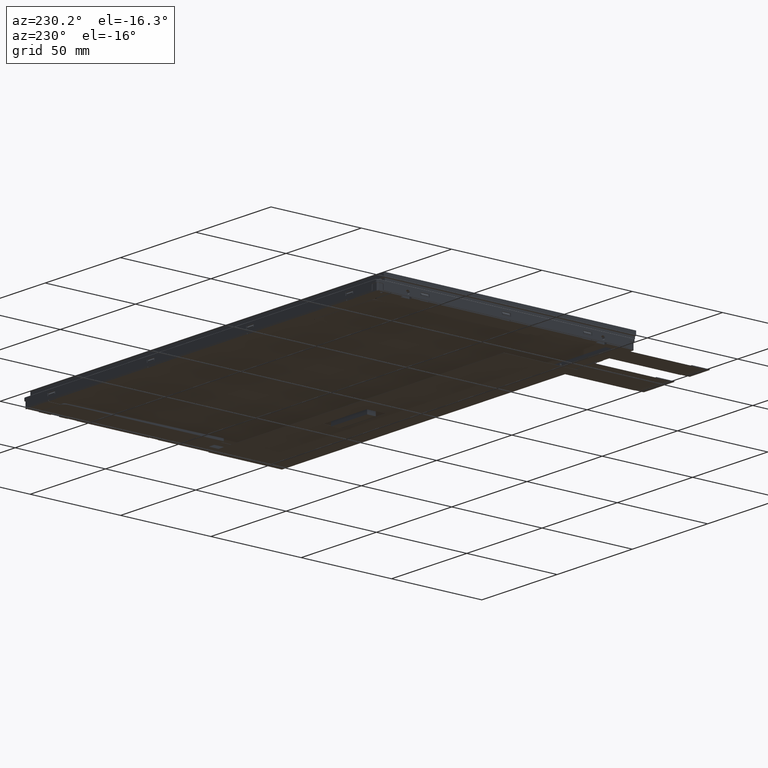
[diagram: clean part render]
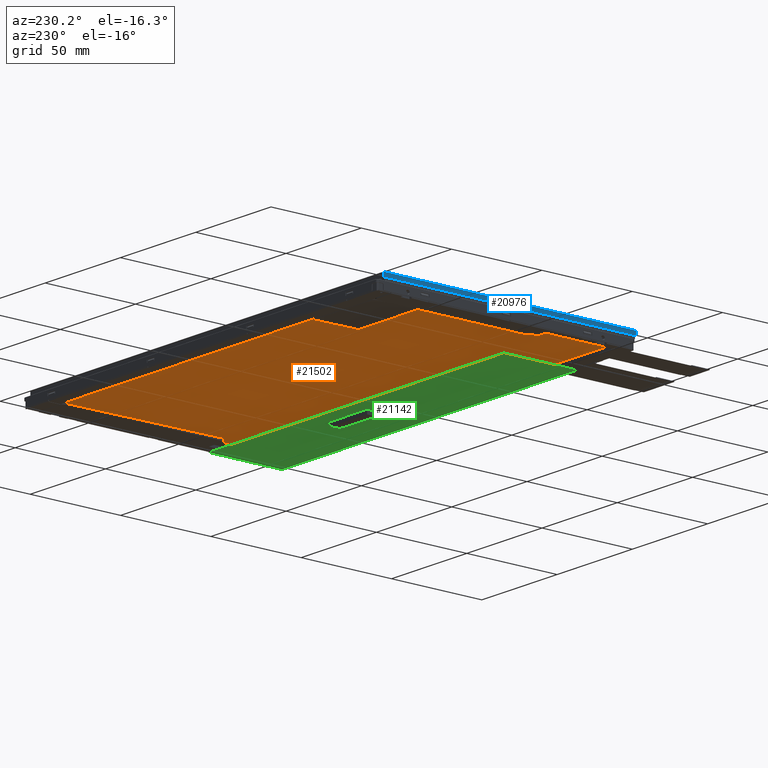
[diagram: same view with three faces highlighted in distinct colors, each labeled with its STEP entity id]
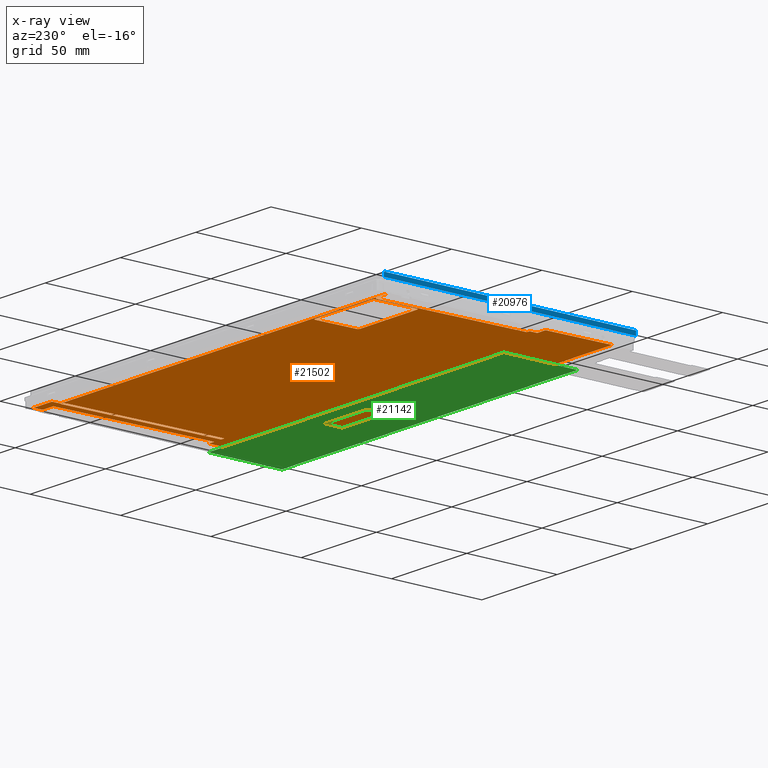
[diagram: x-ray of the same camera — body ghosted, the three highlighted faces saturated]
A machine part, auxiliary view with three faces highlighted in distinct colors.
The next image is the same camera in x-ray (body ghosted, the three faces saturated) — at least one of them is partly hidden behind the body in this view.
Their STEP definitions:

[orange] entity #21502 — the highlighted planar face has unit normal (-0, -0.01, -0.9999).
#21=ELLIPSE('',#22439,0.50002504026918,0.500000000000008);
#22=ELLIPSE('',#22442,0.50002504026918,0.500000000000008);
#23=ELLIPSE('',#22445,0.500025040269174,0.500000000000002);
#24=ELLIPSE('',#22536,0.300015024161564,0.300000000000061);
#25=ELLIPSE('',#22554,0.500025040269196,0.500000000000024);
#26=ELLIPSE('',#22557,2.00010016107665,1.99999999999996);
#27=ELLIPSE('',#22573,0.500025040269105,0.499999999999933);
#28=ELLIPSE('',#22585,2.0001001610767,2.00000000000002);
#45=CIRCLE('',#21770,1.);
#49=CIRCLE('',#21777,1.);
#50=CIRCLE('',#21779,1.);
#51=CIRCLE('',#21782,1.);
#440=FACE_BOUND('',#2484,.T.);
#441=FACE_BOUND('',#2485,.T.);
#1341=FACE_OUTER_BOUND('',#2483,.T.);
#2483=EDGE_LOOP('',(#18541,#18542,#18543,#18544,#18545,#18546,#18547,#18548,
#18549,#18550,#18551,#18552,#18553,#18554,#18555,#18556,#18557,#18558,#18559,
#18560,#18561,#18562,#18563,#18564,#18565,#18566));
#2484=EDGE_LOOP('',(#18567,#18568,#18569,#18570,#18571,#18572,#18573,#18574));
#2485=EDGE_LOOP('',(#18575,#18576,#18577,#18578,#18579,#18580));
#2792=LINE('',#28661,#5626);
#2798=LINE('',#28676,#5632);
#2800=LINE('',#28682,#5634);
#2801=LINE('',#28684,#5635);
#4168=LINE('',#31950,#7002);
#4175=LINE('',#31964,#7009);
#4218=LINE('',#32061,#7052);
#4257=LINE('',#32156,#7091);
#4261=LINE('',#32164,#7095);
#4275=LINE('',#32197,#7109);
#4343=LINE('',#32347,#7177);
#4347=LINE('',#32355,#7181);
#4353=LINE('',#32365,#7187);
#4356=LINE('',#32373,#7190);
#4360=LINE('',#32382,#7194);
#4366=LINE('',#32392,#7200);
#4369=LINE('',#32397,#7203);
#4371=LINE('',#32412,#7205);
#4556=LINE('',#32857,#7390);
#4560=LINE('',#32866,#7394);
#4562=LINE('',#32869,#7396);
#4579=LINE('',#32907,#7413);
#4584=LINE('',#32918,#7418);
#4590=LINE('',#32929,#7424);
#5077=LINE('',#34023,#7911);
#5082=LINE('',#34034,#7916);
#5083=LINE('',#34036,#7917);
#5084=LINE('',#34037,#7918);
#5626=VECTOR('',#23178,10.);
#5632=VECTOR('',#23194,10.);
#5634=VECTOR('',#23202,10.);
#5635=VECTOR('',#23205,10.);
#7002=VECTOR('',#25748,10.);
#7009=VECTOR('',#25755,10.);
#7052=VECTOR('',#25820,10.);
#7091=VECTOR('',#25891,10.);
#7095=VECTOR('',#25895,10.);
#7109=VECTOR('',#25917,10.);
#7177=VECTOR('',#26033,10.);
#7181=VECTOR('',#26039,10.);
#7187=VECTOR('',#26047,10.);
#7190=VECTOR('',#26052,10.);
#7194=VECTOR('',#26058,10.);
#7200=VECTOR('',#26070,10.);
#7203=VECTOR('',#26077,10.);
#7205=VECTOR('',#26099,10.);
#7390=VECTOR('',#26486,10.);
#7394=VECTOR('',#26496,10.);
#7396=VECTOR('',#26500,10.);
#7413=VECTOR('',#26545,10.);
#7418=VECTOR('',#26552,10.);
#7424=VECTOR('',#26560,10.);
#7911=VECTOR('',#27551,10.);
#7916=VECTOR('',#27562,10.);
#7917=VECTOR('',#27563,10.);
#7918=VECTOR('',#27564,10.);
#8440=VERTEX_POINT('',#28640);
#8441=VERTEX_POINT('',#28642);
#8448=VERTEX_POINT('',#28660);
#8449=VERTEX_POINT('',#28664);
#8450=VERTEX_POINT('',#28668);
#8451=VERTEX_POINT('',#28670);
#8452=VERTEX_POINT('',#28674);
#8453=VERTEX_POINT('',#28678);
#9443=VERTEX_POINT('',#31947);
#9444=VERTEX_POINT('',#31949);
#9450=VERTEX_POINT('',#31961);
#9451=VERTEX_POINT('',#31963);
#9493=VERTEX_POINT('',#32059);
#9494=VERTEX_POINT('',#32060);
#9533=VERTEX_POINT('',#32154);
#9534=VERTEX_POINT('',#32155);
#9537=VERTEX_POINT('',#32161);
#9538=VERTEX_POINT('',#32163);
#9552=VERTEX_POINT('',#32194);
#9553=VERTEX_POINT('',#32196);
#9610=VERTEX_POINT('',#32344);
#9611=VERTEX_POINT('',#32346);
#9614=VERTEX_POINT('',#32354);
#9617=VERTEX_POINT('',#32363);
#9620=VERTEX_POINT('',#32370);
#9621=VERTEX_POINT('',#32372);
#9624=VERTEX_POINT('',#32379);
#9625=VERTEX_POINT('',#32381);
#9626=VERTEX_POINT('',#32389);
#9628=VERTEX_POINT('',#32401);
#9629=VERTEX_POINT('',#32411);
#9787=VERTEX_POINT('',#32854);
#9788=VERTEX_POINT('',#32856);
#9797=VERTEX_POINT('',#32906);
#9801=VERTEX_POINT('',#32916);
#9802=VERTEX_POINT('',#32917);
#9806=VERTEX_POINT('',#32927);
#10117=VERTEX_POINT('',#34021);
#10120=VERTEX_POINT('',#34033);
#10121=VERTEX_POINT('',#34035);
#10488=EDGE_CURVE('',#8441,#8440,#45,.T.);
#10497=EDGE_CURVE('',#8448,#8441,#2792,.T.);
#10499=EDGE_CURVE('',#8449,#8448,#49,.T.);
#10502=EDGE_CURVE('',#8451,#8450,#50,.T.);
#10505=EDGE_CURVE('',#8450,#8452,#2798,.T.);
#10507=EDGE_CURVE('',#8452,#8453,#51,.T.);
#10508=EDGE_CURVE('',#8453,#8449,#2800,.T.);
#10509=EDGE_CURVE('',#8440,#8451,#2801,.T.);
#11981=EDGE_CURVE('',#9444,#9443,#4168,.T.);
#11988=EDGE_CURVE('',#9451,#9450,#4175,.T.);
#12035=EDGE_CURVE('',#9493,#9494,#4218,.T.);
#12082=EDGE_CURVE('',#9533,#9534,#4257,.T.);
#12086=EDGE_CURVE('',#9538,#9537,#4261,.T.);
#12102=EDGE_CURVE('',#9553,#9552,#4275,.T.);
#12180=EDGE_CURVE('',#9611,#9610,#4343,.T.);
#12184=EDGE_CURVE('',#9610,#9614,#4347,.T.);
#12190=EDGE_CURVE('',#9614,#9617,#4353,.T.);
#12193=EDGE_CURVE('',#9621,#9620,#4356,.T.);
#12197=EDGE_CURVE('',#9625,#9624,#4360,.T.);
#12203=EDGE_CURVE('',#9626,#9553,#4366,.T.);
#12206=EDGE_CURVE('',#9552,#9611,#4369,.T.);
#12209=EDGE_CURVE('',#9624,#9628,#21,.T.);
#12211=EDGE_CURVE('',#9620,#9625,#22,.T.);
#12213=EDGE_CURVE('',#9617,#9621,#23,.T.);
#12214=EDGE_CURVE('',#9629,#9626,#4371,.T.);
#12409=EDGE_CURVE('',#9534,#9629,#24,.T.);
#12428=EDGE_CURVE('',#9788,#9787,#4556,.T.);
#12433=EDGE_CURVE('',#9443,#9533,#4560,.T.);
#12435=EDGE_CURVE('',#9537,#9451,#4562,.T.);
#12440=EDGE_CURVE('',#9787,#9538,#25,.T.);
#12441=EDGE_CURVE('',#9450,#9788,#26,.T.);
#12454=EDGE_CURVE('',#9797,#9493,#4579,.T.);
#12459=EDGE_CURVE('',#9801,#9802,#4584,.T.);
#12465=EDGE_CURVE('',#9628,#9806,#4590,.T.);
#12471=EDGE_CURVE('',#9806,#9801,#27,.T.);
#12502=EDGE_CURVE('',#9802,#9797,#28,.T.);
#12999=EDGE_CURVE('',#10117,#9494,#5077,.T.);
#13004=EDGE_CURVE('',#10120,#10117,#5082,.T.);
#13005=EDGE_CURVE('',#10120,#10121,#5083,.T.);
#13006=EDGE_CURVE('',#10121,#9444,#5084,.T.);
#18541=ORIENTED_EDGE('',*,*,#11981,.T.);
#18542=ORIENTED_EDGE('',*,*,#12433,.T.);
#18543=ORIENTED_EDGE('',*,*,#12082,.T.);
#18544=ORIENTED_EDGE('',*,*,#12409,.T.);
#18545=ORIENTED_EDGE('',*,*,#12214,.T.);
#18546=ORIENTED_EDGE('',*,*,#12203,.T.);
#18547=ORIENTED_EDGE('',*,*,#12102,.T.);
#18548=ORIENTED_EDGE('',*,*,#12206,.T.);
#18549=ORIENTED_EDGE('',*,*,#12180,.T.);
#18550=ORIENTED_EDGE('',*,*,#12184,.T.);
#18551=ORIENTED_EDGE('',*,*,#12190,.T.);
#18552=ORIENTED_EDGE('',*,*,#12213,.T.);
#18553=ORIENTED_EDGE('',*,*,#12193,.T.);
#18554=ORIENTED_EDGE('',*,*,#12211,.T.);
#18555=ORIENTED_EDGE('',*,*,#12197,.T.);
#18556=ORIENTED_EDGE('',*,*,#12209,.T.);
#18557=ORIENTED_EDGE('',*,*,#12465,.T.);
#18558=ORIENTED_EDGE('',*,*,#12471,.T.);
#18559=ORIENTED_EDGE('',*,*,#12459,.T.);
#18560=ORIENTED_EDGE('',*,*,#12502,.T.);
#18561=ORIENTED_EDGE('',*,*,#12454,.T.);
#18562=ORIENTED_EDGE('',*,*,#12035,.T.);
#18563=ORIENTED_EDGE('',*,*,#12999,.F.);
#18564=ORIENTED_EDGE('',*,*,#13004,.F.);
#18565=ORIENTED_EDGE('',*,*,#13005,.T.);
#18566=ORIENTED_EDGE('',*,*,#13006,.T.);
#18567=ORIENTED_EDGE('',*,*,#10502,.T.);
#18568=ORIENTED_EDGE('',*,*,#10505,.T.);
#18569=ORIENTED_EDGE('',*,*,#10507,.T.);
#18570=ORIENTED_EDGE('',*,*,#10508,.T.);
#18571=ORIENTED_EDGE('',*,*,#10499,.T.);
#18572=ORIENTED_EDGE('',*,*,#10497,.T.);
#18573=ORIENTED_EDGE('',*,*,#10488,.T.);
#18574=ORIENTED_EDGE('',*,*,#10509,.T.);
#18575=ORIENTED_EDGE('',*,*,#12435,.T.);
#18576=ORIENTED_EDGE('',*,*,#11988,.T.);
#18577=ORIENTED_EDGE('',*,*,#12441,.T.);
#18578=ORIENTED_EDGE('',*,*,#12428,.T.);
#18579=ORIENTED_EDGE('',*,*,#12440,.T.);
#18580=ORIENTED_EDGE('',*,*,#12086,.T.);
#20431=PLANE('',#22822);
#21502=ADVANCED_FACE('',(#1341,#440,#441),#20431,.T.);
#21770=AXIS2_PLACEMENT_3D('',#28643,#23161,#23162);
#21777=AXIS2_PLACEMENT_3D('',#28665,#23182,#23183);
#21779=AXIS2_PLACEMENT_3D('',#28671,#23188,#23189);
#21782=AXIS2_PLACEMENT_3D('',#28680,#23198,#23199);
#22439=AXIS2_PLACEMENT_3D('',#32403,#26083,#26084);
#22442=AXIS2_PLACEMENT_3D('',#32406,#26089,#26090);
#22445=AXIS2_PLACEMENT_3D('',#32409,#26095,#26096);
#22536=AXIS2_PLACEMENT_3D('',#32814,#26448,#26449);
#22554=AXIS2_PLACEMENT_3D('',#32878,#26509,#26510);
#22557=AXIS2_PLACEMENT_3D('',#32881,#26515,#26516);
#22573=AXIS2_PLACEMENT_3D('',#32941,#26573,#26574);
#22585=AXIS2_PLACEMENT_3D('',#33004,#26626,#26627);
#22822=AXIS2_PLACEMENT_3D('',#34032,#27560,#27561);
#23161=DIRECTION('center_axis',(4.98866329061567E-18,0.0100076747053688,
0.999949921969591));
#23162=DIRECTION('ref_axis',(-0.707106781186555,-0.70707137067165,0.00707649464807565));
#23178=DIRECTION('',(-9.61724211092417E-15,-0.999949921969591,0.0100076747053688));
#23182=DIRECTION('center_axis',(4.98866329061567E-18,0.0100076747053688,
0.999949921969591));
#23183=DIRECTION('ref_axis',(-0.70710678118654,0.707071370671664,-0.00707649464807507));
#23188=DIRECTION('center_axis',(4.98866329061567E-18,0.0100076747053688,
0.999949921969591));
#23189=DIRECTION('ref_axis',(0.707106781186542,-0.707071370671663,0.00707649464807506));
#23194=DIRECTION('',(1.02389670047143E-14,0.999949921969591,-0.0100076747053688));
#23198=DIRECTION('center_axis',(4.98866329061567E-18,0.0100076747053688,
0.999949921969591));
#23199=DIRECTION('ref_axis',(0.707106781186555,0.70707137067165,-0.00707649464807565));
#23202=DIRECTION('',(-1.,9.75003051452185E-15,-9.25911072464229E-17));
#23205=DIRECTION('',(1.,-9.97206399989041E-15,9.48132574225947E-17));
#25748=DIRECTION('',(-1.,4.984837574646E-16,5.57384943346501E-35));
#25755=DIRECTION('',(-1.,4.984837574646E-16,5.57384943346501E-35));
#25820=DIRECTION('',(4.98458794379835E-16,0.999949921969591,-0.0100076747053688));
#25891=DIRECTION('',(1.,-4.984837574646E-16,-5.57384943346501E-35));
#25895=DIRECTION('',(1.,-4.984837574646E-16,-5.57384943346501E-35));
#25917=DIRECTION('',(-4.98458794379835E-16,-0.999949921969591,0.0100076747053688));
#26033=DIRECTION('',(4.98458794379835E-16,0.999949921969591,-0.0100076747053688));
#26039=DIRECTION('',(-1.,4.984837574646E-16,5.57384943346501E-35));
#26047=DIRECTION('',(4.98458794379835E-16,0.999949921969591,-0.0100076747053688));
#26052=DIRECTION('',(1.,-4.984837574646E-16,-5.57384943346501E-35));
#26058=DIRECTION('',(4.98458794379835E-16,0.999949921969591,-0.0100076747053688));
#26070=DIRECTION('',(-1.,4.984837574646E-16,5.57384943346501E-35));
#26077=DIRECTION('',(-1.,4.984837574646E-16,5.57384943346501E-35));
#26083=DIRECTION('center_axis',(-4.98866329061567E-18,-0.0100076747053688,
-0.999949921969591));
#26084=DIRECTION('ref_axis',(1.93019195865289E-14,0.999949921969591,-0.0100076747053688));
#26089=DIRECTION('center_axis',(4.98866329061567E-18,0.0100076747053688,
0.999949921969591));
#26090=DIRECTION('ref_axis',(-1.93019195865289E-14,-0.999949921969591,0.0100076747053688));
#26095=DIRECTION('center_axis',(-4.98866329061567E-18,-0.0100076747053688,
-0.999949921969591));
#26096=DIRECTION('ref_axis',(6.74315057037038E-15,0.999949921969591,-0.0100076747053688));
#26099=DIRECTION('',(-4.98458794379835E-16,-0.999949921969591,0.0100076747053688));
#26448=DIRECTION('center_axis',(-4.98866329061567E-18,-0.0100076747053688,
-0.999949921969591));
#26449=DIRECTION('ref_axis',(-2.18701786786874E-13,0.999949921969591,-0.0100076747053688));
#26486=DIRECTION('',(-4.98458794379835E-16,-0.999949921969591,0.0100076747053688));
#26496=DIRECTION('',(-4.98458794379835E-16,-0.999949921969591,0.0100076747053688));
#26500=DIRECTION('',(4.98458794379835E-16,0.999949921969591,-0.0100076747053688));
#26509=DIRECTION('center_axis',(4.98866329061567E-18,0.0100076747053688,
0.999949921969591));
#26510=DIRECTION('ref_axis',(-4.98458794379835E-16,-0.999949921969591,0.0100076747053688));
#26515=DIRECTION('center_axis',(4.98866329061567E-18,0.0100076747053688,
0.999949921969591));
#26516=DIRECTION('ref_axis',(-2.62388709361551E-15,0.999949921969591,-0.0100076747053688));
#26545=DIRECTION('',(-1.,4.984837574646E-16,5.57384943346501E-35));
#26552=DIRECTION('',(4.98458794379835E-16,0.999949921969591,-0.0100076747053688));
#26560=DIRECTION('',(1.,-4.984837574646E-16,-5.57384943346501E-35));
#26573=DIRECTION('center_axis',(4.98866329061567E-18,0.0100076747053688,
0.999949921969591));
#26574=DIRECTION('ref_axis',(-1.93019195865317E-14,-0.999949921969591,0.0100076747053688));
#26626=DIRECTION('center_axis',(4.98866329061567E-18,0.0100076747053688,
0.999949921969591));
#26627=DIRECTION('ref_axis',(3.6208046823751E-15,0.999949921969591,-0.0100076747053688));
#27551=DIRECTION('',(-1.,4.984837574646E-16,5.57384943346501E-35));
#27560=DIRECTION('center_axis',(-4.98866329061567E-18,-0.0100076747053688,
-0.999949921969591));
#27561=DIRECTION('ref_axis',(-1.,4.984837574646E-16,5.57384943346501E-35));
#27562=DIRECTION('',(-0.00625467434339671,-0.99993036228227,0.0100074789485776));
#27563=DIRECTION('',(1.,-4.984837574646E-16,-5.57384943346501E-35));
#27564=DIRECTION('',(-4.98458794379835E-16,-0.999949921969591,0.0100076747053688));
#28640=CARTESIAN_POINT('',(-102.56,37.884277438186,-7.88250258648296));
#28642=CARTESIAN_POINT('',(-103.56,38.8842273601556,-7.89251026118833));
#28643=CARTESIAN_POINT('Origin',(-102.56,38.8842273601556,-7.89251026118835));
#28660=CARTESIAN_POINT('',(-103.56,61.8830755654562,-8.12268677941181));
#28661=CARTESIAN_POINT('',(-103.56,31.0937857831946,-7.81454215158557));
#28664=CARTESIAN_POINT('',(-102.56,62.8830254874258,-8.13269445411718));
#28665=CARTESIAN_POINT('Origin',(-102.56,61.8830755654562,-8.12268677941183));
#28668=CARTESIAN_POINT('',(-63.5600000000002,38.8842273601552,-7.89251026118835));
#28670=CARTESIAN_POINT('',(-64.5600000000002,37.8842774381857,-7.88250258648298));
#28671=CARTESIAN_POINT('Origin',(-64.5600000000002,38.8842273601553,-7.89251026118836));
#28674=CARTESIAN_POINT('',(-63.56,61.8830755654558,-8.12268677941183));
#28676=CARTESIAN_POINT('',(-63.5600000000004,24.8440987708843,-7.75199418467701));
#28678=CARTESIAN_POINT('',(-64.56,62.8830254874254,-8.1326944541172));
#28680=CARTESIAN_POINT('Origin',(-64.56,61.8830755654559,-8.12268677941184));
#28682=CARTESIAN_POINT('',(-99.1615999999997,62.8830254874258,-8.13269445411719));
#28684=CARTESIAN_POINT('',(-109.1616,37.8842774381861,-7.88250258648297));
#31947=CARTESIAN_POINT('',(108.36,63.5800000000065,-8.13966989763369));
#31949=CARTESIAN_POINT('',(115.5,63.5800000000065,-8.1396698976335));
#31950=CARTESIAN_POINT('',(-3.30321356237297,63.5800000000065,-8.1396698976335));
#31961=CARTESIAN_POINT('',(103.56,63.5800000000065,-8.13966989763369));
#31963=CARTESIAN_POINT('',(103.71,63.5800000000065,-8.13966989763369));
#31964=CARTESIAN_POINT('',(-3.30321356237297,63.5800000000065,-8.1396698976335));
#32059=CARTESIAN_POINT('',(-112.96,63.5800000000066,-8.13966989763369));
#32060=CARTESIAN_POINT('',(-112.96,63.8800000000066,-8.14267235040204));
#32061=CARTESIAN_POINT('',(-112.96,-33.5714637316594,-7.16736096014004));
#32154=CARTESIAN_POINT('',(108.36,-25.4500000000035,-7.2486419976922));
#32155=CARTESIAN_POINT('',(111.56,-25.4499999999935,-7.2486419976923));
#32156=CARTESIAN_POINT('',(-3.47307013012252,-25.4499999999935,-7.24864199769225));
#32161=CARTESIAN_POINT('',(103.71,-25.4499999999935,-7.2486419976923));
#32163=CARTESIAN_POINT('',(102.06,-25.4499999999985,-7.24864199769219));
#32164=CARTESIAN_POINT('',(-3.47307013012252,-25.4499999999935,-7.24864199769225));
#32194=CARTESIAN_POINT('',(97.06,-64.6899999999935,-6.85592117556829));
#32196=CARTESIAN_POINT('',(97.06,-62.2899999998995,-6.87994079827562));
#32197=CARTESIAN_POINT('',(97.06,-32.9576279358293,-7.1735043367554));
#32344=CARTESIAN_POINT('',(-70.8299999999901,-62.2899999998994,-6.87994079827562));
#32346=CARTESIAN_POINT('',(-70.82999999999,-64.6899999999934,-6.85592117556829));
#32347=CARTESIAN_POINT('',(-70.82999999999,-32.8526384519523,-7.17455508997717));
#32354=CARTESIAN_POINT('',(-111.86,-62.2899999999944,-6.87994079771674));
#32355=CARTESIAN_POINT('',(-102.586140152238,-62.2899999999934,-6.87994079771656));
#32363=CARTESIAN_POINT('',(-111.86,-25.9499999999934,-7.24363790974474));
#32365=CARTESIAN_POINT('',(-111.86,-22.2736980765431,-7.2804309860381));
#32370=CARTESIAN_POINT('',(-106.86,-25.4499999999984,-7.24864199769219));
#32372=CARTESIAN_POINT('',(-111.36,-25.4499999999984,-7.24864199769219));
#32373=CARTESIAN_POINT('',(-111.9366,-25.4499999999934,-7.24864199769225));
#32379=CARTESIAN_POINT('',(-106.36,-21.6499999999934,-7.28667306609369));
#32381=CARTESIAN_POINT('',(-106.36,-24.9499999999934,-7.25364608563984));
#32382=CARTESIAN_POINT('',(-106.36,-11.9897281558358,-7.38335476590452));
#32389=CARTESIAN_POINT('',(111.86,-62.2899999999935,-6.87994079771655));
#32392=CARTESIAN_POINT('',(-4.53644671741254,-62.2899999999935,-6.87994079771656));
#32397=CARTESIAN_POINT('',(-56.8815999999983,-64.6899999999934,-6.85592117556831));
#32401=CARTESIAN_POINT('',(-105.86,-21.1500000000014,-7.29167715404109));
#32403=CARTESIAN_POINT('Origin',(-105.86,-21.6499999999934,-7.28667306609365));
#32406=CARTESIAN_POINT('Origin',(-106.86,-24.9499999999934,-7.2536460856398));
#32409=CARTESIAN_POINT('Origin',(-111.36,-25.9499999999934,-7.2436379097447));
#32411=CARTESIAN_POINT('',(111.86,-25.7499999999935,-7.24563954492376));
#32412=CARTESIAN_POINT('',(111.86,-22.2239180357609,-7.28092919344232));
#32814=CARTESIAN_POINT('Origin',(111.56,-25.7499999999947,-7.24563954492371));
#32854=CARTESIAN_POINT('',(101.56,-24.9499999999935,-7.25364608563984));
#32856=CARTESIAN_POINT('',(101.56,61.5800000000065,-8.11965354584349));
#32857=CARTESIAN_POINT('',(101.56,9.71086394648281,-7.60053810869246));
#32866=CARTESIAN_POINT('',(108.36,9.20977303946622,-7.5955231027556));
#32869=CARTESIAN_POINT('',(103.71,9.20977303946622,-7.5955231027556));
#32878=CARTESIAN_POINT('Origin',(102.06,-24.9499999999935,-7.2536460856398));
#32881=CARTESIAN_POINT('Origin',(103.56,61.5800000000065,-8.11965354584329));
#32906=CARTESIAN_POINT('',(-106.56,63.5800000000066,-8.13966989763369));
#32907=CARTESIAN_POINT('',(-111.714886437627,63.5800000000066,-8.1396698976335));
#32916=CARTESIAN_POINT('',(-104.56,-20.6499999999934,-7.29668124198879));
#32917=CARTESIAN_POINT('',(-104.56,61.5800000000066,-8.11965354584349));
#32918=CARTESIAN_POINT('',(-104.56,10.7805546533853,-7.6112437614405));
#32927=CARTESIAN_POINT('',(-105.06,-21.1500000000014,-7.29167715404109));
#32929=CARTESIAN_POINT('',(-110.1116,-21.1499999999934,-7.2916771540412));
#32941=CARTESIAN_POINT('Origin',(-105.06,-20.6499999999935,-7.29668124198876));
#33004=CARTESIAN_POINT('Origin',(-106.56,61.5800000000066,-8.11965354584329));
#34021=CARTESIAN_POINT('',(103.244570690701,63.8800000000065,-8.14267235040204));
#34023=CARTESIAN_POINT('',(63.0855784843425,63.8800000000065,-8.14267235040204));
#34032=CARTESIAN_POINT('Origin',(-114.7632,-0.69545392103642,-7.49638984905395));
#34033=CARTESIAN_POINT('',(103.274137523997,68.6068287325715,-8.18997928378359));
#34034=CARTESIAN_POINT('',(103.423603454946,92.5018413706393,-8.42912477328115));
#34035=CARTESIAN_POINT('',(115.5,68.6068287325715,-8.18997928378359));
#34036=CARTESIAN_POINT('',(-113.,68.6068287325716,-8.18997928378359));
#34037=CARTESIAN_POINT('',(115.5,68.6068287325715,-8.18997928378359));

[blue] entity #20976 — the highlighted planar face has unit normal (-1, 0, -0).
#815=FACE_OUTER_BOUND('',#1909,.T.);
#1909=EDGE_LOOP('',(#15476,#15477,#15478,#15479));
#2849=LINE('',#28819,#5683);
#3720=LINE('',#30581,#6554);
#3723=LINE('',#30586,#6557);
#3724=LINE('',#30587,#6558);
#5683=VECTOR('',#23283,10.);
#6554=VECTOR('',#24762,10.);
#6557=VECTOR('',#24767,10.);
#6558=VECTOR('',#24768,10.);
#8492=VERTEX_POINT('',#28816);
#8493=VERTEX_POINT('',#28818);
#9079=VERTEX_POINT('',#30578);
#9080=VERTEX_POINT('',#30580);
#10561=EDGE_CURVE('',#8492,#8493,#2849,.T.);
#11440=EDGE_CURVE('',#9079,#9080,#3720,.T.);
#11443=EDGE_CURVE('',#9079,#8493,#3723,.T.);
#11444=EDGE_CURVE('',#9080,#8492,#3724,.T.);
#15476=ORIENTED_EDGE('',*,*,#11440,.F.);
#15477=ORIENTED_EDGE('',*,*,#11443,.T.);
#15478=ORIENTED_EDGE('',*,*,#10561,.F.);
#15479=ORIENTED_EDGE('',*,*,#11444,.F.);
#20005=PLANE('',#22104);
#20976=ADVANCED_FACE('',(#815),#20005,.T.);
#22104=AXIS2_PLACEMENT_3D('',#30585,#24765,#24766);
#23283=DIRECTION('',(4.984837574646E-16,1.,1.72602975101007E-81));
#24762=DIRECTION('',(-4.984837574646E-16,-1.,-1.72602975101007E-81));
#24765=DIRECTION('center_axis',(-1.,4.984837574646E-16,-3.46255966250344E-66));
#24766=DIRECTION('ref_axis',(4.984837574646E-16,1.,1.72602975101007E-81));
#24767=DIRECTION('',(3.46255966250344E-66,0.,-1.));
#24768=DIRECTION('',(3.46255966250344E-66,0.,-1.));
#28816=CARTESIAN_POINT('',(-117.13,-71.1799999999999,-2.35));
#28818=CARTESIAN_POINT('',(-117.13,68.5200000000001,-2.35));
#28819=CARTESIAN_POINT('',(-117.13,68.5200000000001,-2.35));
#30578=CARTESIAN_POINT('',(-117.13,68.5200000000001,-4.05569613269027E-64));
#30580=CARTESIAN_POINT('',(-117.13,-71.1799999999999,-4.05569613269028E-64));
#30581=CARTESIAN_POINT('',(-117.13,68.5200000000001,-4.05569613269027E-64));
#30585=CARTESIAN_POINT('Origin',(-117.13,-71.1799999999999,-4.05569613269028E-64));
#30586=CARTESIAN_POINT('',(-117.13,68.5200000000001,-4.05569613269027E-64));
#30587=CARTESIAN_POINT('',(-117.13,-71.1799999999999,-4.05569613269028E-64));

[green] entity #21142 — the highlighted planar face has unit normal (0, -0, -1).
#431=FACE_BOUND('',#2115,.T.);
#981=FACE_OUTER_BOUND('',#2114,.T.);
#2114=EDGE_LOOP('',(#16466,#16467,#16468,#16469));
#2115=EDGE_LOOP('',(#16470,#16471,#16472,#16473));
#4127=LINE('',#31861,#6961);
#4133=LINE('',#31874,#6967);
#4136=LINE('',#31880,#6970);
#4138=LINE('',#31883,#6972);
#4139=LINE('',#31886,#6973);
#4140=LINE('',#31888,#6974);
#4141=LINE('',#31890,#6975);
#4142=LINE('',#31891,#6976);
#6961=VECTOR('',#25665,10.);
#6967=VECTOR('',#25677,10.);
#6970=VECTOR('',#25684,10.);
#6972=VECTOR('',#25688,10.);
#6973=VECTOR('',#25689,10.);
#6974=VECTOR('',#25690,10.);
#6975=VECTOR('',#25691,10.);
#6976=VECTOR('',#25692,10.);
#9416=VERTEX_POINT('',#31858);
#9417=VERTEX_POINT('',#31860);
#9420=VERTEX_POINT('',#31871);
#9421=VERTEX_POINT('',#31873);
#9423=VERTEX_POINT('',#31884);
#9424=VERTEX_POINT('',#31885);
#9425=VERTEX_POINT('',#31887);
#9426=VERTEX_POINT('',#31889);
#11936=EDGE_CURVE('',#9417,#9416,#4127,.T.);
#11944=EDGE_CURVE('',#9420,#9421,#4133,.T.);
#11947=EDGE_CURVE('',#9417,#9420,#4136,.T.);
#11949=EDGE_CURVE('',#9416,#9421,#4138,.T.);
#11950=EDGE_CURVE('',#9423,#9424,#4139,.T.);
#11951=EDGE_CURVE('',#9424,#9425,#4140,.T.);
#11952=EDGE_CURVE('',#9425,#9426,#4141,.T.);
#11953=EDGE_CURVE('',#9426,#9423,#4142,.T.);
#16466=ORIENTED_EDGE('',*,*,#11936,.T.);
#16467=ORIENTED_EDGE('',*,*,#11949,.T.);
#16468=ORIENTED_EDGE('',*,*,#11944,.F.);
#16469=ORIENTED_EDGE('',*,*,#11947,.F.);
#16470=ORIENTED_EDGE('',*,*,#11950,.T.);
#16471=ORIENTED_EDGE('',*,*,#11951,.T.);
#16472=ORIENTED_EDGE('',*,*,#11952,.T.);
#16473=ORIENTED_EDGE('',*,*,#11953,.T.);
#20125=PLANE('',#22357);
#21142=ADVANCED_FACE('',(#981,#431),#20125,.T.);
#22357=AXIS2_PLACEMENT_3D('',#31882,#25686,#25687);
#25665=DIRECTION('',(-4.984837574646E-16,-1.,-2.77847340913557E-50));
#25677=DIRECTION('',(-4.984837574646E-16,-1.,-2.77847340913557E-50));
#25684=DIRECTION('',(-1.,4.984837574646E-16,-1.1102230246252E-16));
#25686=DIRECTION('center_axis',(1.1102230246252E-16,-5.53428144938883E-32,
-1.));
#25687=DIRECTION('ref_axis',(1.,-4.984837574646E-16,1.1102230246252E-16));
#25688=DIRECTION('',(-1.,4.984837574646E-16,-1.1102230246252E-16));
#25689=DIRECTION('',(4.984837574646E-16,1.,2.77847340913557E-50));
#25690=DIRECTION('',(-1.,4.984837574646E-16,-1.1102230246252E-16));
#25691=DIRECTION('',(-4.984837574646E-16,-1.,-2.77847340913557E-50));
#25692=DIRECTION('',(1.,-4.984837574646E-16,1.1102230246252E-16));
#31858=CARTESIAN_POINT('',(118.5,-71.4299999999932,-8.61999999999999));
#31860=CARTESIAN_POINT('',(118.5,-30.7299999999935,-8.61999999999999));
#31861=CARTESIAN_POINT('',(118.5,-30.7299999999935,-8.61999999999999));
#31871=CARTESIAN_POINT('',(-77.83,-30.7299999999934,-8.62000000000001));
#31873=CARTESIAN_POINT('',(-77.8300000000001,-71.4299999999931,-8.62000000000001));
#31874=CARTESIAN_POINT('',(-77.83,-30.7299999999934,-8.62000000000001));
#31880=CARTESIAN_POINT('',(118.5,-30.7299999999935,-8.61999999999999));
#31882=CARTESIAN_POINT('Origin',(118.5,-51.0799999999934,-8.61999999999999));
#31883=CARTESIAN_POINT('',(118.5,-71.4299999999932,-8.61999999999999));
#31884=CARTESIAN_POINT('',(53.92,-51.0299999999935,-8.61999999999999));
#31885=CARTESIAN_POINT('',(53.92,-40.7299999999935,-8.61999999999999));
#31886=CARTESIAN_POINT('',(53.92,-51.0299999999935,-8.61999999999999));
#31887=CARTESIAN_POINT('',(25.17,-40.7299999999935,-8.62));
#31888=CARTESIAN_POINT('',(53.92,-40.7299999999935,-8.61999999999999));
#31889=CARTESIAN_POINT('',(25.17,-51.0299999999935,-8.62));
#31890=CARTESIAN_POINT('',(25.17,-40.7299999999935,-8.62));
#31891=CARTESIAN_POINT('',(25.17,-51.0299999999935,-8.62));